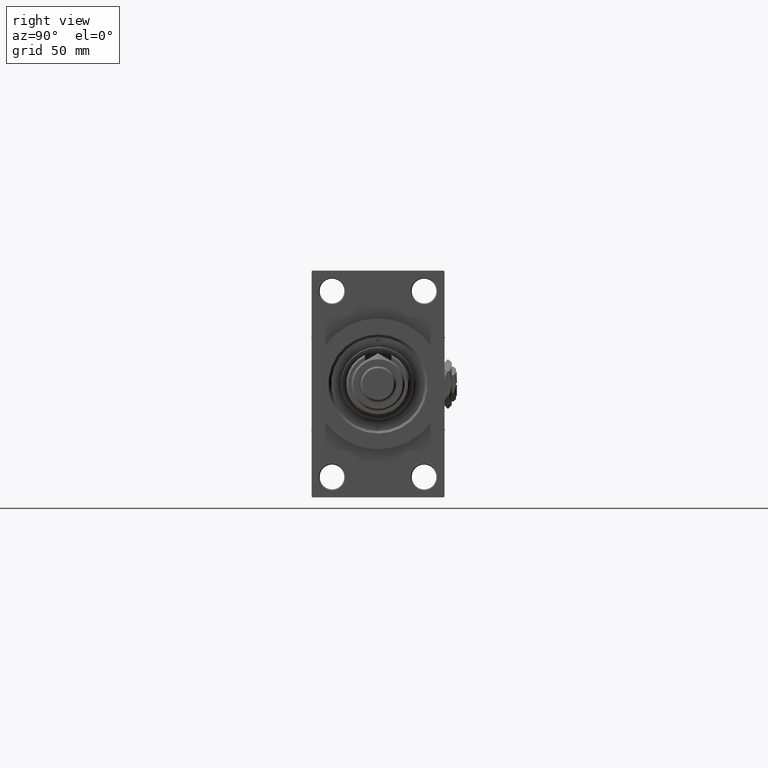
[diagram: clean part render]
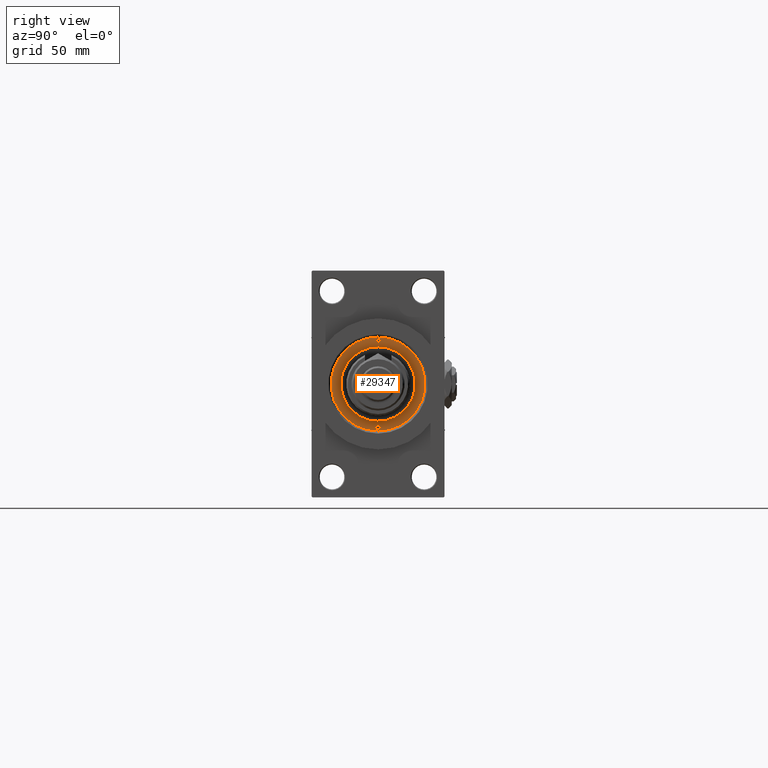
[diagram: same view with one face highlighted and labeled with its STEP entity id]
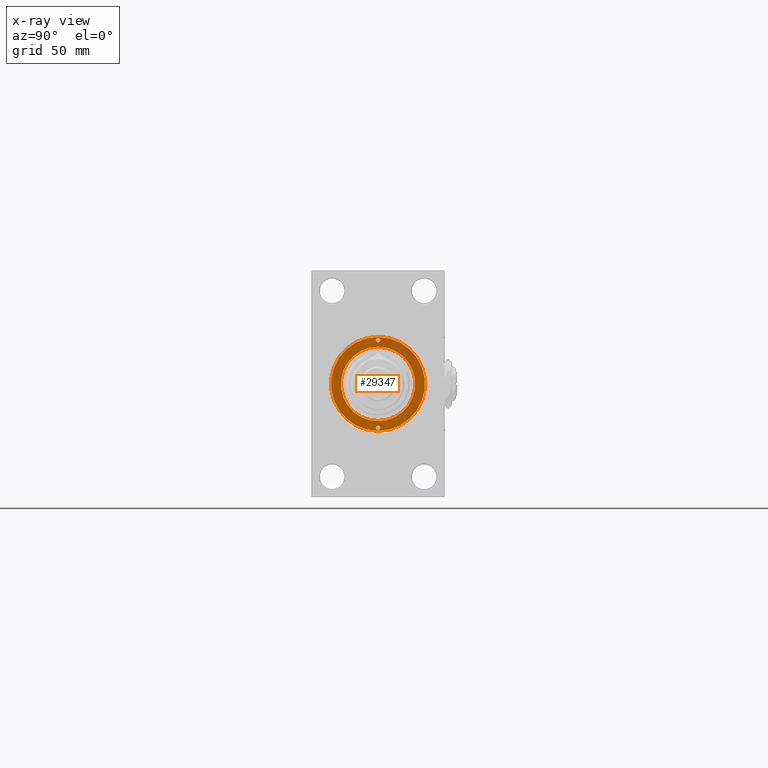
[diagram: x-ray of the same camera — body ghosted, the highlighted face saturated]
A machine part, right view. The second image highlights one B-rep face of the part: STEP entity #29347.
The next image is the same camera in x-ray: the body ghosted, the highlighted face saturated — about 0% of this face is hidden behind the body in this view.
In plain terms, the highlighted planar face has unit normal (1, -0, -0).
Its self-contained STEP definition (entity closure, byte-faithful):
#233 = AXIS2_PLACEMENT_3D ( 'NONE', #24423, #49060, #37151 ) ;
#753 = CARTESIAN_POINT ( 'NONE',  ( 0.000000000000000000, 0.000000000000000000, 43.25999999999999801 ) ) ;
#2141 = DIRECTION ( 'NONE',  ( 1.000000000000000000, 0.000000000000000000, 0.000000000000000000 ) ) ;
#2420 = CARTESIAN_POINT ( 'NONE',  ( 26.50000000000000355, 3.245314017740486554E-15, 43.25999999999999801 ) ) ;
#3712 = EDGE_CURVE ( 'NONE', #28819, #36672, #45009, .T. ) ;
#4576 = CARTESIAN_POINT ( 'NONE',  ( 0.000000000000000000, 0.000000000000000000, 43.25999999999999801 ) ) ;
#4717 = DIRECTION ( 'NONE',  ( 0.000000000000000000, 0.000000000000000000, 1.000000000000000000 ) ) ;
#5229 = PLANE ( 'NONE',  #34594 ) ;
#6271 = AXIS2_PLACEMENT_3D ( 'NONE', #50644, #50388, #26531 ) ;
#6272 = CARTESIAN_POINT ( 'NONE',  ( -24.75000000000000000, 0.000000000000000000, 43.25999999999999801 ) ) ;
#6389 = CIRCLE ( 'NONE', #51216, 1.249999999999997558 ) ;
#6477 = AXIS2_PLACEMENT_3D ( 'NONE', #6272, #21915, #42328 ) ;
#6554 = CIRCLE ( 'NONE', #9099, 26.50000000000000355 ) ;
#8001 = DIRECTION ( 'NONE',  ( 0.000000000000000000, 0.000000000000000000, 1.000000000000000000 ) ) ;
#9099 = AXIS2_PLACEMENT_3D ( 'NONE', #14582, #46141, #22017 ) ;
#10397 = CARTESIAN_POINT ( 'NONE',  ( -23.50000000000000355, 0.000000000000000000, 43.25999999999999801 ) ) ;
#10618 = CARTESIAN_POINT ( 'NONE',  ( -21.00000000000000000, 0.000000000000000000, 43.25999999999999801 ) ) ;
#11478 = VERTEX_POINT ( 'NONE', #10618 ) ;
#12769 = DIRECTION ( 'NONE',  ( 1.000000000000000000, 0.000000000000000000, 0.000000000000000000 ) ) ;
#13411 = ORIENTED_EDGE ( 'NONE', *, *, #38805, .F. ) ;
#14582 = CARTESIAN_POINT ( 'NONE',  ( 0.000000000000000000, 0.000000000000000000, 43.25999999999999801 ) ) ;
#15215 = EDGE_CURVE ( 'NONE', #41058, #49040, #6389, .T. ) ;
#15884 = EDGE_CURVE ( 'NONE', #49040, #41058, #37023, .T. ) ;
#15957 = EDGE_CURVE ( 'NONE', #36672, #28819, #6554, .T. ) ;
#17846 = EDGE_LOOP ( 'NONE', ( #36738, #25971 ) ) ;
#18323 = CIRCLE ( 'NONE', #6477, 1.249999999999997558 ) ;
#18494 = CARTESIAN_POINT ( 'NONE',  ( 23.50000000000000355, 1.530808498934188612E-16, 43.25999999999999801 ) ) ;
#18531 = VERTEX_POINT ( 'NONE', #10397 ) ;
#18812 = EDGE_CURVE ( 'NONE', #43180, #11478, #45679, .T. ) ;
#20043 = EDGE_CURVE ( 'NONE', #39287, #18531, #18323, .T. ) ;
#21915 = DIRECTION ( 'NONE',  ( -0.000000000000000000, -0.000000000000000000, 1.000000000000000000 ) ) ;
#22017 = DIRECTION ( 'NONE',  ( 1.000000000000000000, 0.000000000000000000, 0.000000000000000000 ) ) ;
#24423 = CARTESIAN_POINT ( 'NONE',  ( -24.75000000000000000, 0.000000000000000000, 43.25999999999999801 ) ) ;
#24615 = ORIENTED_EDGE ( 'NONE', *, *, #15957, .T. ) ;
#24698 = CARTESIAN_POINT ( 'NONE',  ( 26.00000000000000000, 0.000000000000000000, 43.25999999999999801 ) ) ;
#24824 = FACE_BOUND ( 'NONE', #17846, .T. ) ;
#24944 = DIRECTION ( 'NONE',  ( 1.000000000000000000, 0.000000000000000000, 0.000000000000000000 ) ) ;
#25744 = CIRCLE ( 'NONE', #6271, 21.00000000000000000 ) ;
#25971 = ORIENTED_EDGE ( 'NONE', *, *, #15215, .F. ) ;
#26221 = CARTESIAN_POINT ( 'NONE',  ( 0.000000000000000000, 0.000000000000000000, 43.25999999999999801 ) ) ;
#26531 = DIRECTION ( 'NONE',  ( 1.000000000000000000, 0.000000000000000000, 0.000000000000000000 ) ) ;
#27722 = EDGE_LOOP ( 'NONE', ( #38410, #36778 ) ) ;
#27812 = ORIENTED_EDGE ( 'NONE', *, *, #3712, .T. ) ;
#28096 = CIRCLE ( 'NONE', #233, 1.249999999999997558 ) ;
#28531 = DIRECTION ( 'NONE',  ( 1.000000000000000000, 0.000000000000000000, 0.000000000000000000 ) ) ;
#28819 = VERTEX_POINT ( 'NONE', #2420 ) ;
#29347 = ADVANCED_FACE ( 'NONE', ( #41544, #24824, #29570, #37035 ), #5229, .T. ) ;
#29396 = AXIS2_PLACEMENT_3D ( 'NONE', #40896, #32646, #24944 ) ;
#29570 = FACE_BOUND ( 'NONE', #27722, .T. ) ;
#29766 = AXIS2_PLACEMENT_3D ( 'NONE', #4576, #8001, #12769 ) ;
#32646 = DIRECTION ( 'NONE',  ( -0.000000000000000000, -0.000000000000000000, 1.000000000000000000 ) ) ;
#32956 = AXIS2_PLACEMENT_3D ( 'NONE', #26221, #38433, #2141 ) ;
#34594 = AXIS2_PLACEMENT_3D ( 'NONE', #753, #4717, #45247 ) ;
#36666 = EDGE_LOOP ( 'NONE', ( #24615, #27812 ) ) ;
#36672 = VERTEX_POINT ( 'NONE', #41288 ) ;
#36738 = ORIENTED_EDGE ( 'NONE', *, *, #15884, .F. ) ;
#36778 = ORIENTED_EDGE ( 'NONE', *, *, #18812, .F. ) ;
#37023 = CIRCLE ( 'NONE', #29396, 1.249999999999997558 ) ;
#37035 = FACE_OUTER_BOUND ( 'NONE', #36666, .T. ) ;
#37151 = DIRECTION ( 'NONE',  ( 1.000000000000000000, 0.000000000000000000, 0.000000000000000000 ) ) ;
#38410 = ORIENTED_EDGE ( 'NONE', *, *, #44686, .F. ) ;
#38433 = DIRECTION ( 'NONE',  ( 0.000000000000000000, 0.000000000000000000, 1.000000000000000000 ) ) ;
#38805 = EDGE_CURVE ( 'NONE', #18531, #39287, #28096, .T. ) ;
#39287 = VERTEX_POINT ( 'NONE', #45448 ) ;
#39685 = CARTESIAN_POINT ( 'NONE',  ( 24.75000000000000000, 0.000000000000000000, 43.25999999999999801 ) ) ;
#40392 = EDGE_LOOP ( 'NONE', ( #13411, #49598 ) ) ;
#40896 = CARTESIAN_POINT ( 'NONE',  ( 24.75000000000000000, 0.000000000000000000, 43.25999999999999801 ) ) ;
#41058 = VERTEX_POINT ( 'NONE', #18494 ) ;
#41288 = CARTESIAN_POINT ( 'NONE',  ( -26.50000000000000355, 0.000000000000000000, 43.25999999999999801 ) ) ;
#41544 = FACE_BOUND ( 'NONE', #40392, .T. ) ;
#42328 = DIRECTION ( 'NONE',  ( 1.000000000000000000, 0.000000000000000000, 0.000000000000000000 ) ) ;
#43180 = VERTEX_POINT ( 'NONE', #51530 ) ;
#44686 = EDGE_CURVE ( 'NONE', #11478, #43180, #25744, .T. ) ;
#45009 = CIRCLE ( 'NONE', #29766, 26.50000000000000355 ) ;
#45247 = DIRECTION ( 'NONE',  ( 1.000000000000000000, 0.000000000000000000, -0.000000000000000000 ) ) ;
#45448 = CARTESIAN_POINT ( 'NONE',  ( -26.00000000000000000, 1.530808498934188612E-16, 43.25999999999999801 ) ) ;
#45679 = CIRCLE ( 'NONE', #32956, 21.00000000000000000 ) ;
#46141 = DIRECTION ( 'NONE',  ( 0.000000000000000000, 0.000000000000000000, 1.000000000000000000 ) ) ;
#47872 = DIRECTION ( 'NONE',  ( -0.000000000000000000, -0.000000000000000000, 1.000000000000000000 ) ) ;
#49040 = VERTEX_POINT ( 'NONE', #24698 ) ;
#49060 = DIRECTION ( 'NONE',  ( -0.000000000000000000, -0.000000000000000000, 1.000000000000000000 ) ) ;
#49598 = ORIENTED_EDGE ( 'NONE', *, *, #20043, .F. ) ;
#50388 = DIRECTION ( 'NONE',  ( 0.000000000000000000, 0.000000000000000000, 1.000000000000000000 ) ) ;
#50644 = CARTESIAN_POINT ( 'NONE',  ( 0.000000000000000000, 0.000000000000000000, 43.25999999999999801 ) ) ;
#51216 = AXIS2_PLACEMENT_3D ( 'NONE', #39685, #47872, #28531 ) ;
#51530 = CARTESIAN_POINT ( 'NONE',  ( 21.00000000000000000, 2.571758278209441661E-15, 43.25999999999999801 ) ) ;